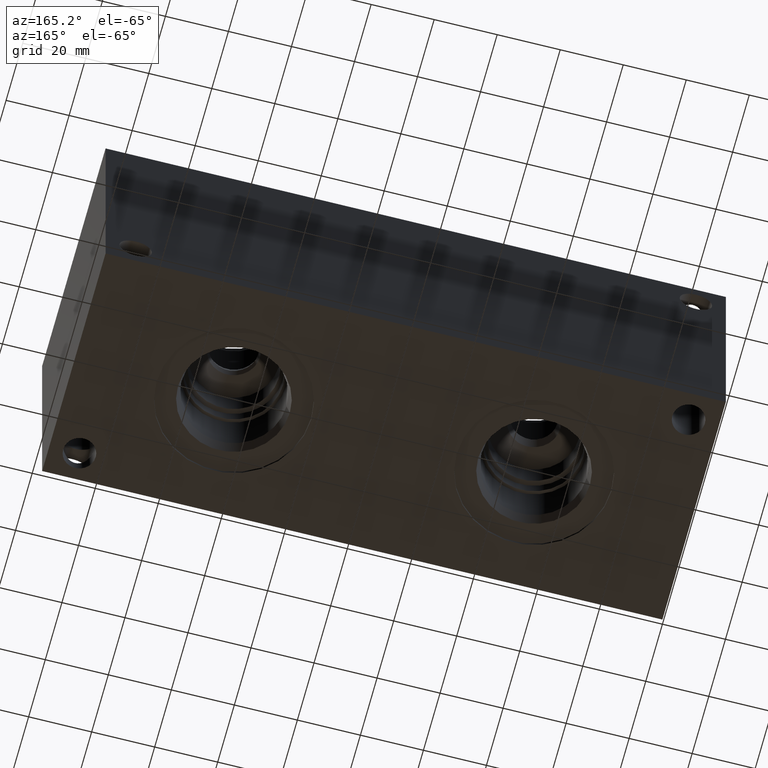
[diagram: clean part render]
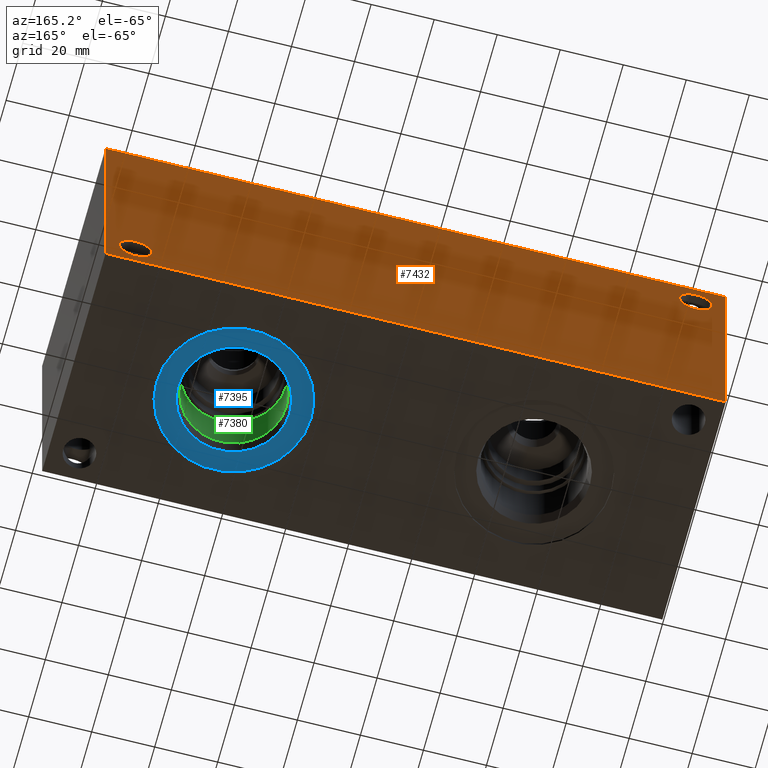
[diagram: same view with three faces highlighted in distinct colors, each labeled with its STEP entity id]
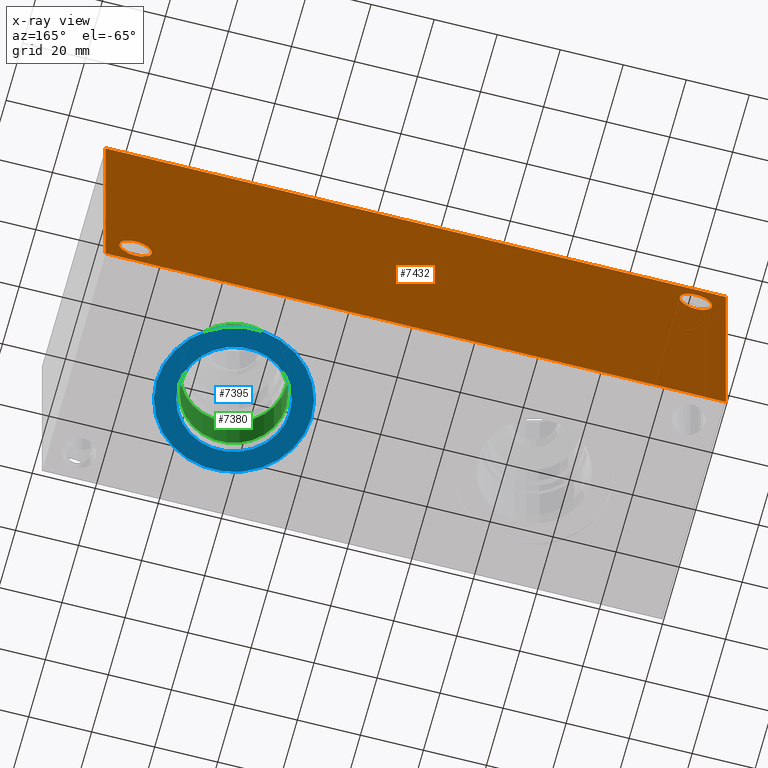
[diagram: x-ray of the same camera — body ghosted, the three highlighted faces saturated]
A machine part, auxiliary view with three faces highlighted in distinct colors.
The next image is the same camera in x-ray (body ghosted, the three faces saturated) — at least one of them is partly hidden behind the body in this view.
Their STEP definitions:

[orange] entity #7432 — the highlighted planar face has unit normal (0, 1, 0).
#148=CIRCLE('',#7781,5.1562);
#151=CIRCLE('',#7790,5.1562);
#210=FACE_BOUND('',#1325,.T.);
#211=FACE_BOUND('',#1326,.T.);
#905=FACE_OUTER_BOUND('',#1324,.T.);
#1324=EDGE_LOOP('',(#6497,#6498,#6499,#6500));
#1325=EDGE_LOOP('',(#6501));
#1326=EDGE_LOOP('',(#6502));
#1612=LINE('',#11504,#2327);
#2046=LINE('',#12735,#2761);
#2047=LINE('',#12738,#2762);
#2048=LINE('',#12739,#2763);
#2327=VECTOR('',#8248,10.);
#2761=VECTOR('',#9292,10.);
#2762=VECTOR('',#9295,10.);
#2763=VECTOR('',#9296,10.);
#3079=VERTEX_POINT('',#11501);
#3080=VERTEX_POINT('',#11503);
#3418=VERTEX_POINT('',#12645);
#3423=VERTEX_POINT('',#12661);
#3443=VERTEX_POINT('',#12731);
#3445=VERTEX_POINT('',#12737);
#3914=EDGE_CURVE('',#3079,#3080,#1612,.T.);
#4424=EDGE_CURVE('',#3418,#3418,#148,.T.);
#4433=EDGE_CURVE('',#3423,#3423,#151,.T.);
#4468=EDGE_CURVE('',#3443,#3080,#2046,.T.);
#4469=EDGE_CURVE('',#3445,#3443,#2047,.T.);
#4470=EDGE_CURVE('',#3445,#3079,#2048,.T.);
#6497=ORIENTED_EDGE('',*,*,#4469,.T.);
#6498=ORIENTED_EDGE('',*,*,#4468,.T.);
#6499=ORIENTED_EDGE('',*,*,#3914,.F.);
#6500=ORIENTED_EDGE('',*,*,#4470,.F.);
#6501=ORIENTED_EDGE('',*,*,#4424,.T.);
#6502=ORIENTED_EDGE('',*,*,#4433,.T.);
#6746=PLANE('',#7826);
#7432=ADVANCED_FACE('',(#905,#210,#211),#6746,.T.);
#7781=AXIS2_PLACEMENT_3D('',#12647,#9185,#9186);
#7790=AXIS2_PLACEMENT_3D('',#12663,#9205,#9206);
#7826=AXIS2_PLACEMENT_3D('',#12736,#9293,#9294);
#8248=DIRECTION('',(-1.,0.,0.));
#9185=DIRECTION('center_axis',(0.,-1.,0.));
#9186=DIRECTION('ref_axis',(1.,0.,0.));
#9205=DIRECTION('center_axis',(0.,-1.,0.));
#9206=DIRECTION('ref_axis',(1.,0.,0.));
#9292=DIRECTION('',(0.,0.,1.));
#9293=DIRECTION('center_axis',(0.,1.,0.));
#9294=DIRECTION('ref_axis',(-1.,0.,0.));
#9295=DIRECTION('',(-1.,0.,0.));
#9296=DIRECTION('',(0.,0.,1.));
#11501=CARTESIAN_POINT('',(196.85,76.2,76.2));
#11503=CARTESIAN_POINT('',(0.,76.2,76.2));
#11504=CARTESIAN_POINT('',(196.85,76.2,76.2));
#12645=CARTESIAN_POINT('',(4.3688,76.2,67.4624));
#12647=CARTESIAN_POINT('Origin',(9.525,76.2,67.4624));
#12661=CARTESIAN_POINT('',(182.1688,76.2,8.7376));
#12663=CARTESIAN_POINT('Origin',(187.325,76.2,8.7376));
#12731=CARTESIAN_POINT('',(0.,76.2,0.));
#12735=CARTESIAN_POINT('',(0.,76.2,0.));
#12736=CARTESIAN_POINT('Origin',(196.85,76.2,0.));
#12737=CARTESIAN_POINT('',(196.85,76.2,0.));
#12738=CARTESIAN_POINT('',(196.85,76.2,0.));
#12739=CARTESIAN_POINT('',(196.85,76.2,0.));

[blue] entity #7395 — the highlighted planar face has unit normal (0, 0, -1).
#122=CIRCLE('',#7733,24.5618);
#123=CIRCLE('',#7734,24.5618);
#124=CIRCLE('',#7735,17.7546);
#205=FACE_BOUND('',#1283,.T.);
#868=FACE_OUTER_BOUND('',#1282,.T.);
#1282=EDGE_LOOP('',(#6315,#6316));
#1283=EDGE_LOOP('',(#6317));
#3390=VERTEX_POINT('',#12554);
#3391=VERTEX_POINT('',#12555);
#3392=VERTEX_POINT('',#12558);
#4378=EDGE_CURVE('',#3390,#3391,#122,.T.);
#4379=EDGE_CURVE('',#3391,#3390,#123,.T.);
#4380=EDGE_CURVE('',#3392,#3392,#124,.T.);
#6315=ORIENTED_EDGE('',*,*,#4378,.T.);
#6316=ORIENTED_EDGE('',*,*,#4379,.T.);
#6317=ORIENTED_EDGE('',*,*,#4380,.F.);
#6740=PLANE('',#7732);
#7395=ADVANCED_FACE('',(#868,#205),#6740,.T.);
#7732=AXIS2_PLACEMENT_3D('',#12553,#9071,#9072);
#7733=AXIS2_PLACEMENT_3D('',#12556,#9073,#9074);
#7734=AXIS2_PLACEMENT_3D('',#12557,#9075,#9076);
#7735=AXIS2_PLACEMENT_3D('',#12559,#9077,#9078);
#9071=DIRECTION('center_axis',(0.,0.,-1.));
#9072=DIRECTION('ref_axis',(1.,0.,0.));
#9073=DIRECTION('center_axis',(0.,0.,-1.));
#9074=DIRECTION('ref_axis',(1.,0.,0.));
#9075=DIRECTION('center_axis',(0.,0.,-1.));
#9076=DIRECTION('ref_axis',(1.,0.,0.));
#9077=DIRECTION('center_axis',(0.,0.,-1.));
#9078=DIRECTION('ref_axis',(1.,0.,0.));
#12553=CARTESIAN_POINT('Origin',(146.05,38.1,0.7874));
#12554=CARTESIAN_POINT('',(170.6118,38.1,0.7874));
#12555=CARTESIAN_POINT('',(121.4882,38.1,0.7874));
#12556=CARTESIAN_POINT('Origin',(146.05,38.1,0.7874));
#12557=CARTESIAN_POINT('Origin',(146.05,38.1,0.7874));
#12558=CARTESIAN_POINT('',(128.2954,38.1,0.7874));
#12559=CARTESIAN_POINT('Origin',(146.05,38.1,0.7874));

[green] entity #7380 — the highlighted cylindrical surface (bore or boss wall) has radius 16.6751 mm, axis along (0, 0, -1).
#26=CYLINDRICAL_SURFACE('',#7697,16.6751);
#99=CIRCLE('',#7694,16.6751);
#100=CIRCLE('',#7695,16.6751);
#102=CIRCLE('',#7698,16.6751);
#853=FACE_OUTER_BOUND('',#1266,.T.);
#1266=EDGE_LOOP('',(#6245,#6246,#6247,#6248,#6249));
#1999=LINE('',#12487,#2714);
#2714=VECTOR('',#8991,16.6751);
#3367=VERTEX_POINT('',#12478);
#3368=VERTEX_POINT('',#12479);
#3370=VERTEX_POINT('',#12485);
#4341=EDGE_CURVE('',#3367,#3368,#99,.T.);
#4342=EDGE_CURVE('',#3368,#3367,#100,.T.);
#4344=EDGE_CURVE('',#3370,#3370,#102,.T.);
#4345=EDGE_CURVE('',#3370,#3368,#1999,.T.);
#6245=ORIENTED_EDGE('',*,*,#4344,.F.);
#6246=ORIENTED_EDGE('',*,*,#4345,.T.);
#6247=ORIENTED_EDGE('',*,*,#4341,.F.);
#6248=ORIENTED_EDGE('',*,*,#4342,.F.);
#6249=ORIENTED_EDGE('',*,*,#4345,.F.);
#7380=ADVANCED_FACE('',(#853),#26,.F.);
#7694=AXIS2_PLACEMENT_3D('',#12480,#8981,#8982);
#7695=AXIS2_PLACEMENT_3D('',#12481,#8983,#8984);
#7697=AXIS2_PLACEMENT_3D('',#12484,#8987,#8988);
#7698=AXIS2_PLACEMENT_3D('',#12486,#8989,#8990);
#8981=DIRECTION('center_axis',(0.,0.,-1.));
#8982=DIRECTION('ref_axis',(1.,0.,0.));
#8983=DIRECTION('center_axis',(0.,0.,-1.));
#8984=DIRECTION('ref_axis',(1.,0.,0.));
#8987=DIRECTION('center_axis',(0.,0.,-1.));
#8988=DIRECTION('ref_axis',(1.,0.,0.));
#8989=DIRECTION('center_axis',(0.,0.,1.));
#8990=DIRECTION('ref_axis',(1.,0.,0.));
#8991=DIRECTION('',(0.,0.,1.));
#12478=CARTESIAN_POINT('',(162.7251,38.1,19.8374));
#12479=CARTESIAN_POINT('',(129.3749,38.1,19.8374));
#12480=CARTESIAN_POINT('Origin',(146.05,38.1,19.8374));
#12481=CARTESIAN_POINT('Origin',(146.05,38.1,19.8374));
#12484=CARTESIAN_POINT('Origin',(146.05,38.1,9.9187));
#12485=CARTESIAN_POINT('',(129.3749,38.1,4.8236788467706));
#12486=CARTESIAN_POINT('Origin',(146.05,38.1,4.8236788467706));
#12487=CARTESIAN_POINT('',(129.3749,38.1,9.9187));